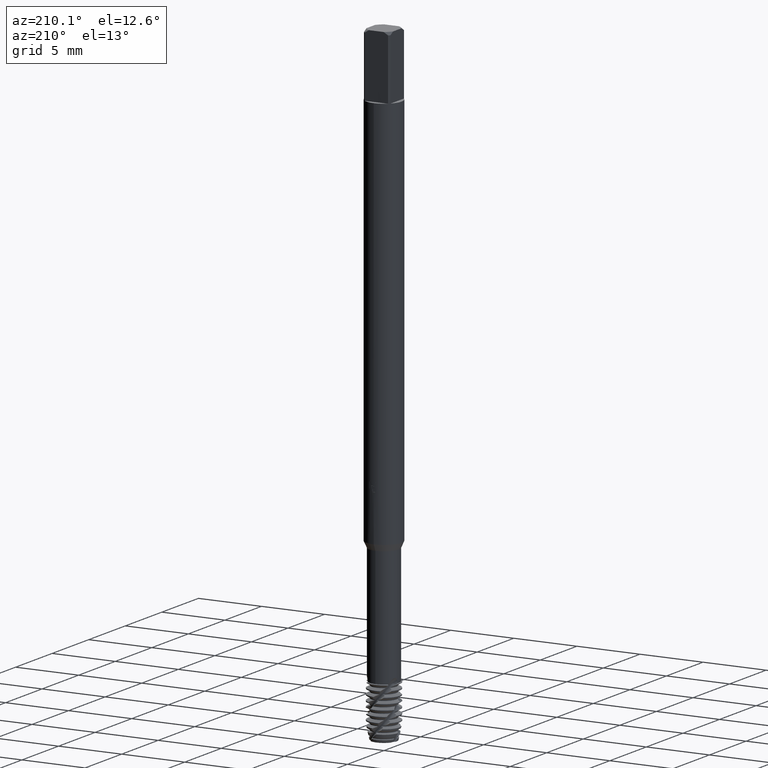
[diagram: clean part render]
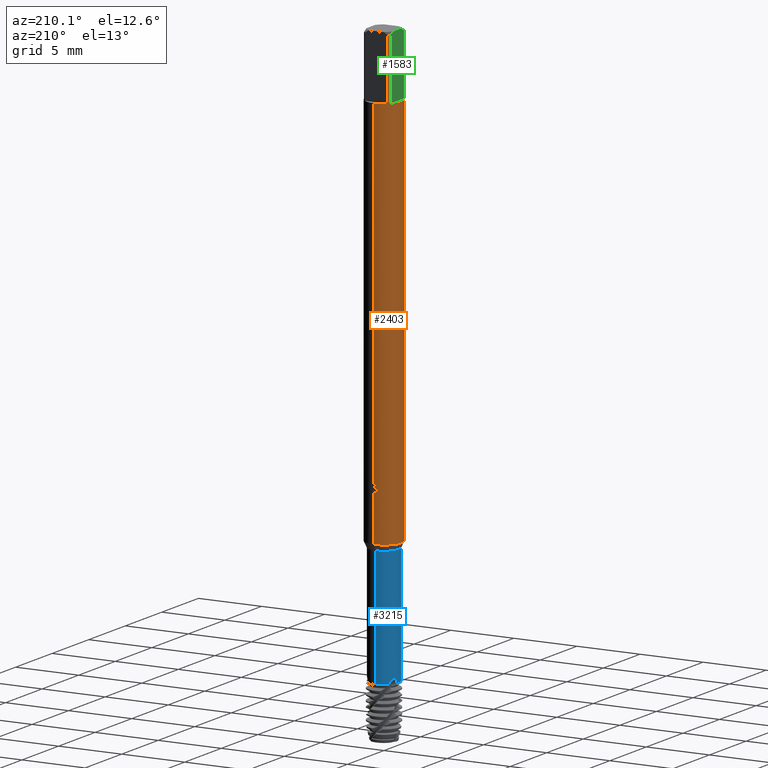
[diagram: same view with three faces highlighted in distinct colors, each labeled with its STEP entity id]
A machine part, auxiliary view with three faces highlighted in distinct colors.
Their STEP definitions:

[orange] entity #2403 — the highlighted cylindrical surface (edge-blend (fillet) strip) has radius 1.4 mm, axis along (-0, -0, 1).
#1479=VERTEX_POINT('',#4333);
#1523=VERTEX_POINT('',#4383);
#1567=VERTEX_POINT('',#4432);
#1675=EDGE_CURVE('',#3099,#2881,#4547,.T.);
#1753=EDGE_CURVE('',#3991,#2265,#4631,.T.);
#1863=VERTEX_POINT('',#4753);
#1867=EDGE_CURVE('',#2553,#2039,#4757,.T.);
#1931=EDGE_CURVE('',#1863,#3799,#4825,.T.);
#1987=EDGE_CURVE('',#3843,#2821,#4887,.T.);
#1993=EDGE_CURVE('',#2821,#2335,#4893,.T.);
#2039=VERTEX_POINT('',#4941);
#2095=VERTEX_POINT('',#5003);
#2149=VERTEX_POINT('',#5063);
#2255=EDGE_CURVE('',#2335,#1523,#5179,.T.);
#2265=VERTEX_POINT('',#5189);
#2335=VERTEX_POINT('',#5267);
#2339=EDGE_CURVE('',#3799,#2553,#5271,.T.);
#2345=VERTEX_POINT('',#5278);
#2403=ADVANCED_FACE('',(#5342),#5343,.T.);
#2405=VERTEX_POINT('',#5345);
#2493=EDGE_CURVE('',#2345,#2405,#5443,.T.);
#2553=VERTEX_POINT('',#5508);
#2585=EDGE_CURVE('',#1863,#1479,#5541,.T.);
#2607=EDGE_CURVE('',#2095,#3673,#5565,.T.);
#2821=VERTEX_POINT('',#5791);
#2881=VERTEX_POINT('',#5860);
#2947=EDGE_CURVE('',#2405,#3413,#5930,.T.);
#3015=EDGE_CURVE('',#2265,#1479,#6000,.T.);
#3099=VERTEX_POINT('',#6093);
#3191=EDGE_CURVE('',#2039,#2345,#6194,.T.);
#3341=EDGE_CURVE('',#3673,#2149,#6362,.T.);
#3413=VERTEX_POINT('',#6438);
#3583=EDGE_CURVE('',#1523,#1567,#6620,.T.);
#3673=VERTEX_POINT('',#6716);
#3799=VERTEX_POINT('',#6850);
#3825=EDGE_CURVE('',#1567,#3099,#6877,.T.);
#3843=VERTEX_POINT('',#6897);
#3909=EDGE_CURVE('',#2881,#3991,#6970,.T.);
#3991=VERTEX_POINT('',#7059);
#4175=EDGE_CURVE('',#3413,#2095,#7267,.T.);
#4181=EDGE_CURVE('',#2149,#3843,#7273,.T.);
#4333=CARTESIAN_POINT('',(0.0,1.4,-36.0));
#4383=CARTESIAN_POINT('',(-0.157453517263844,1.39111767651096,-31.5887942156352));
#4432=CARTESIAN_POINT('',(-0.289820553094464,1.36967297082333,-31.5887942156352));
#4547=LINE('',#8509,#8510);
#4631=B_SPLINE_CURVE_WITH_KNOTS('',3,(#8902,#8903,#8904,#8905,#8906,#8907,#8908,#8909,#8910,#8911),.UNSPECIFIED.,.F.,.F.,(4,2,2,2,4),(1.55844472953586,1.73165366963831,1.90490204009231,2.0781504105463,2.25114125913259),.UNSPECIFIED.);
#4753=CARTESIAN_POINT('',(1.71444889535133E-016,-1.4,-36.0));
#4757=LINE('',#9179,#9180);
#4825=LINE('',#9330,#9331);
#4887=LINE('',#9628,#9629);
#4893=B_SPLINE_CURVE_WITH_KNOTS('',3,(#9637,#9638,#9639,#9640,#9641,#9642,#9643,#9644,#9645,#9646,#9647,#9648,#9649,#9650,#9651,#9652,#9653,#9654,#9655,#9656,#9657,#9658,#9659,#9660,#9661,#9662,#9663),.UNSPECIFIED.,.F.,.F.,(4,2,3,2,2,2,2,2,2,2,2,2,4),(-0.151896109344489,-0.0759480546722444,0.0,0.0759480546722442,0.151896109344488,0.228003668182346,0.304111227020204,0.379951168701424,0.455791110382644,0.531710014355649,0.607628918328655,0.683547822301662,0.759466726274669),.UNSPECIFIED.);
#4941=CARTESIAN_POINT('',(-0.926012958872607,-1.05,-0.200000000000003));
#5003=CARTESIAN_POINT('',(-1.05,0.926012958872607,-0.200000000000003));
#5063=CARTESIAN_POINT('',(-0.926012958872607,1.05,-5.0));
#5179=B_SPLINE_CURVE_WITH_KNOTS('',3,(#10548,#10549,#10550,#10551,#10552,#10553,#10554,#10555,#10556,#10557,#10558,#10559,#10560,#10561,#10562,#10563,#10564,#10565,#10566,#10567,#10568,#10569,#10570,#10571,#10572,#10573,#10574),.UNSPECIFIED.,.F.,.F.,(4,2,3,2,2,2,2,2,2,2,2,2,4),(-0.151896109344489,-0.0759480546722444,0.0,0.0759480546722442,0.151896109344488,0.228003668182346,0.304111227020204,0.379951168701424,0.455791110382644,0.531710014355649,0.607628918328655,0.683547822301662,0.759466726274669),.UNSPECIFIED.);
#5189=CARTESIAN_POINT('',(-4.47157889729947E-015,1.40000000000001,-32.3486871008289));
#5267=CARTESIAN_POINT('',(-0.136186104427254,1.39336045047968,-31.6801194495242));
#5271=CIRCLE('',#10752,1.4);
#5278=CARTESIAN_POINT('',(-1.05,-0.926012958872607,-0.200000000000003));
#5342=FACE_OUTER_BOUND('',#11023,.T.);
#5343=CYLINDRICAL_SURFACE('',#11024,1.4);
#5345=CARTESIAN_POINT('',(-1.05,-0.926012958872607,-5.0));
#5443=LINE('',#11527,#11528);
#5508=CARTESIAN_POINT('',(-0.926012958872607,-1.05,-5.0));
#5541=CIRCLE('',#11758,1.4);
#5565=CIRCLE('',#11938,1.4);
#5791=CARTESIAN_POINT('',(9.0648518523229E-015,1.40000000000001,-31.7865152672968));
#5860=CARTESIAN_POINT('',(-1.71437466645961E-016,1.4,-31.9796095174242));
#5930=CIRCLE('',#12894,1.4);
#6000=LINE('',#13038,#13039);
#6093=CARTESIAN_POINT('',(-1.69423152329887E-016,1.40000000000001,-31.9200224434527));
#6194=CIRCLE('',#13794,1.4);
#6362=LINE('',#14543,#14544);
#6438=CARTESIAN_POINT('',(-1.05,0.926012958872607,-5.0));
#6620=CIRCLE('',#15465,1.4);
#6716=CARTESIAN_POINT('',(-0.926012958872607,1.05,-0.200000000000003));
#6850=CARTESIAN_POINT('',(1.71444889535133E-016,-1.4,-5.0));
#6877=B_SPLINE_CURVE_WITH_KNOTS('',3,(#16202,#16203,#16204,#16205,#16206,#16207,#16208,#16209,#16210,#16211,#16212,#16213,#16214,#16215),.UNSPECIFIED.,.F.,.F.,(4,2,2,2,2,2,4),(0.877332568088122,1.0025885474486,1.12784452680907,1.25310050616955,1.37810034033348,1.5031001744974,1.62879506095172),.UNSPECIFIED.);
#6897=CARTESIAN_POINT('',(-1.71444889535133E-016,1.4,-5.0));
#6970=ELLIPSE('',#16408,1.56089980486,1.4);
#7059=CARTESIAN_POINT('',(-0.374374770684041,1.34901576383498,-32.1641825094463));
#7267=LINE('',#17528,#17529);
#7273=CIRCLE('',#17554,1.4);
#8509=CARTESIAN_POINT('',(-1.71444889535133E-016,1.4,-18.1));
#8510=VECTOR('',#18367,1.0);
#8902=CARTESIAN_POINT('',(-0.429016529382615,1.33264579596999,-32.0678173500457));
#8903=CARTESIAN_POINT('',(-0.405692155785757,1.34015456887875,-32.123911251529));
#8904=CARTESIAN_POINT('',(-0.370690490742647,1.35066740394375,-32.174884162743));
#8905=CARTESIAN_POINT('',(-0.290223032522476,1.37021357743969,-32.2553819787667));
#8906=CARTESIAN_POINT('',(-0.23923067900931,1.38056999535266,-32.2904238437486));
#8907=CARTESIAN_POINT('',(-0.126980813581745,1.39537833678434,-32.3371225771094));
#8908=CARTESIAN_POINT('',(-0.065689935139525,1.39964989628983,-32.3487562533824));
#8909=CARTESIAN_POINT('',(0.0497212810642483,1.40030456931414,-32.3487562533824));
#8910=CARTESIAN_POINT('',(0.110972139307001,1.39673887442665,-32.3371535563571));
#8911=CARTESIAN_POINT('',(0.167086310021945,1.38999358451874,-32.3138300223375));
#9179=CARTESIAN_POINT('',(-0.926012958872607,-1.05,-2.6));
#9180=VECTOR('',#18586,1.0);
#9330=CARTESIAN_POINT('',(1.71444889535133E-016,-1.4,-18.1));
#9331=VECTOR('',#18646,1.0);
#9628=CARTESIAN_POINT('',(-1.71444889535133E-016,1.4,-18.1));
#9629=VECTOR('',#18702,1.0);
#9637=CARTESIAN_POINT('',(0.186234375625526,1.38755783927567,-31.4478069768094));
#9638=CARTESIAN_POINT('',(0.204045855147288,1.38516722918807,-31.4656377636506));
#9639=CARTESIAN_POINT('',(0.219509966508969,1.38272329461867,-31.4882242090074));
#9640=CARTESIAN_POINT('',(0.240044541369611,1.37930669332289,-31.5377751968526));
#9641=CARTESIAN_POINT('',(0.2451122747328,1.37837584597791,-31.5647437453002));
#9642=CARTESIAN_POINT('',(0.2451122747328,1.37837584597791,-31.5900597635243));
#9643=CARTESIAN_POINT('',(0.2451122747328,1.37837584597791,-31.6153757817484));
#9644=CARTESIAN_POINT('',(0.240044541369612,1.37930669332289,-31.642344330196));
#9645=CARTESIAN_POINT('',(0.219509966508969,1.38272329461867,-31.6918953180412));
#9646=CARTESIAN_POINT('',(0.204045855147288,1.38516722918807,-31.714481763398));
#9647=CARTESIAN_POINT('',(0.168385488889172,1.38995347006155,-31.7501807848438));
#9648=CARTESIAN_POINT('',(0.145779535192356,1.39261191870671,-31.7656794796524));
#9649=CARTESIAN_POINT('',(0.096181070294642,1.39691403840364,-31.7862627632496));
#9650=CARTESIAN_POINT('',(0.0691841415516893,1.39851962809616,-31.7913446487769));
#9651=CARTESIAN_POINT('',(0.018559799405131,1.40010521435468,-31.7913446487769));
#9652=CARTESIAN_POINT('',(-0.00839589391406644,1.4001943792419,-31.7862946899823));
#9653=CARTESIAN_POINT('',(-0.0579719081846378,1.39901895933102,-31.7657649729061));
#9654=CARTESIAN_POINT('',(-0.0805935619871287,1.39779298536454,-31.7502862407914));
#9655=CARTESIAN_POINT('',(-0.116331445893834,1.39527352684361,-31.714573107387));
#9656=CARTESIAN_POINT('',(-0.131830410449506,1.39381762035858,-31.6919457716586));
#9657=CARTESIAN_POINT('',(-0.152394035573754,1.39171939506282,-31.642343344318));
#9658=CARTESIAN_POINT('',(-0.15745749577243,1.39111722619809,-31.6153660648486));
#9659=CARTESIAN_POINT('',(-0.15745749577243,1.39111722619809,-31.5647534622));
#9660=CARTESIAN_POINT('',(-0.152394035573756,1.39171939506282,-31.5377761827306));
#9661=CARTESIAN_POINT('',(-0.131830410449509,1.39381762035858,-31.48817375539));
#9662=CARTESIAN_POINT('',(-0.116331445893835,1.39527352684361,-31.4655464196616));
#9663=CARTESIAN_POINT('',(-0.0984532064751357,1.39653391155917,-31.4476805619331));
#10548=CARTESIAN_POINT('',(0.186234375625526,1.38755783927567,-31.4478069768094));
#10549=CARTESIAN_POINT('',(0.204045855147288,1.38516722918807,-31.4656377636506));
#10550=CARTESIAN_POINT('',(0.219509966508969,1.38272329461867,-31.4882242090074));
#10551=CARTESIAN_POINT('',(0.240044541369611,1.37930669332289,-31.5377751968526));
#10552=CARTESIAN_POINT('',(0.2451122747328,1.37837584597791,-31.5647437453002));
#10553=CARTESIAN_POINT('',(0.2451122747328,1.37837584597791,-31.5900597635243));
#10554=CARTESIAN_POINT('',(0.2451122747328,1.37837584597791,-31.6153757817484));
#10555=CARTESIAN_POINT('',(0.240044541369612,1.37930669332289,-31.642344330196));
#10556=CARTESIAN_POINT('',(0.219509966508969,1.38272329461867,-31.6918953180412));
#10557=CARTESIAN_POINT('',(0.204045855147288,1.38516722918807,-31.714481763398));
#10558=CARTESIAN_POINT('',(0.168385488889172,1.38995347006155,-31.7501807848438));
#10559=CARTESIAN_POINT('',(0.145779535192356,1.39261191870671,-31.7656794796524));
#10560=CARTESIAN_POINT('',(0.096181070294642,1.39691403840364,-31.7862627632496));
#10561=CARTESIAN_POINT('',(0.0691841415516893,1.39851962809616,-31.7913446487769));
#10562=CARTESIAN_POINT('',(0.018559799405131,1.40010521435468,-31.7913446487769));
#10563=CARTESIAN_POINT('',(-0.00839589391406644,1.4001943792419,-31.7862946899823));
#10564=CARTESIAN_POINT('',(-0.0579719081846378,1.39901895933102,-31.7657649729061));
#10565=CARTESIAN_POINT('',(-0.0805935619871287,1.39779298536454,-31.7502862407914));
#10566=CARTESIAN_POINT('',(-0.116331445893834,1.39527352684361,-31.714573107387));
#10567=CARTESIAN_POINT('',(-0.131830410449506,1.39381762035858,-31.6919457716586));
#10568=CARTESIAN_POINT('',(-0.152394035573754,1.39171939506282,-31.642343344318));
#10569=CARTESIAN_POINT('',(-0.15745749577243,1.39111722619809,-31.6153660648486));
#10570=CARTESIAN_POINT('',(-0.15745749577243,1.39111722619809,-31.5647534622));
#10571=CARTESIAN_POINT('',(-0.152394035573756,1.39171939506282,-31.5377761827306));
#10572=CARTESIAN_POINT('',(-0.131830410449509,1.39381762035858,-31.48817375539));
#10573=CARTESIAN_POINT('',(-0.116331445893835,1.39527352684361,-31.4655464196616));
#10574=CARTESIAN_POINT('',(-0.0984532064751357,1.39653391155917,-31.4476805619331));
#10752=AXIS2_PLACEMENT_3D('',#19125,#19126,#19127);
#11023=EDGE_LOOP('',(#19203,#19204,#19205,#19206,#19207,#19208,#19209,#19210,#19211,#19212,#19213,#19214,#19215,#19216,#19217,#19218,#19219,#19220,#19221,#19222));
#11024=AXIS2_PLACEMENT_3D('',#19223,#19224,#19225);
#11527=CARTESIAN_POINT('',(-1.05,-0.926012958872607,-2.6));
#11528=VECTOR('',#19403,1.0);
#11758=AXIS2_PLACEMENT_3D('',#19474,#19475,#19476);
#11938=AXIS2_PLACEMENT_3D('',#19497,#19498,#19499);
#12894=AXIS2_PLACEMENT_3D('',#19814,#19815,#19816);
#13038=CARTESIAN_POINT('',(-1.71444889535133E-016,1.4,-18.1));
#13039=VECTOR('',#19853,1.0);
#13794=AXIS2_PLACEMENT_3D('',#20051,#20052,#20053);
#14543=CARTESIAN_POINT('',(-0.926012958872607,1.05,-2.6));
#14544=VECTOR('',#20248,1.0);
#15465=AXIS2_PLACEMENT_3D('',#20473,#20474,#20475);
#16202=CARTESIAN_POINT('',(-0.264513944242675,1.37478448249214,-31.4643537113286));
#16203=CARTESIAN_POINT('',(-0.281457069492113,1.37152455966724,-31.5051661228205));
#16204=CARTESIAN_POINT('',(-0.289830525012523,1.36967086074391,-31.549612527885));
#16205=CARTESIAN_POINT('',(-0.289830525012523,1.36967086074391,-31.6331165141253));
#16206=CARTESIAN_POINT('',(-0.281457069492113,1.37152455966724,-31.6775629191898));
#16207=CARTESIAN_POINT('',(-0.247570818993244,1.37804440531705,-31.7591877421737));
#16208=CARTESIAN_POINT('',(-0.222064402294621,1.38259480849808,-31.7963780115321));
#16209=CARTESIAN_POINT('',(-0.163325944898116,1.39075592373449,-31.8550453226931));
#16210=CARTESIAN_POINT('',(-0.126156946775664,1.39490256656694,-31.8804935002752));
#16211=CARTESIAN_POINT('',(-0.0446084703576172,1.39988529162754,-31.9142856189831));
#16212=CARTESIAN_POINT('',(-0.000220194096732775,1.40061988348699,-31.9226232164242));
#16213=CARTESIAN_POINT('',(0.0833081175461695,1.39814706834276,-31.9226232164242));
#16214=CARTESIAN_POINT('',(0.127803858795131,1.39476004737609,-31.9142024232933));
#16215=CARTESIAN_POINT('',(0.168607196542067,1.38980991983588,-31.897236746946));
#16408=AXIS2_PLACEMENT_3D('',#20789,#20790,#20791);
#17528=CARTESIAN_POINT('',(-1.05,0.926012958872607,-2.6));
#17529=VECTOR('',#21107,1.0);
#17554=AXIS2_PLACEMENT_3D('',#21108,#21109,#21110);
#18367=DIRECTION('',(0.0,0.0,-1.0));
#18586=DIRECTION('',(-0.0,-0.0,1.0));
#18646=DIRECTION('',(-0.0,-0.0,1.0));
#18702=DIRECTION('',(0.0,0.0,-1.0));
#19125=CARTESIAN_POINT('',(0.0,0.0,-5.0));
#19126=DIRECTION('',(0.0,0.0,-1.0));
#19127=DIRECTION('',(0.0,1.0,0.0));
#19203=ORIENTED_EDGE('',*,*,#1987,.T.);
#19204=ORIENTED_EDGE('',*,*,#1993,.T.);
#19205=ORIENTED_EDGE('',*,*,#2255,.T.);
#19206=ORIENTED_EDGE('',*,*,#3583,.T.);
#19207=ORIENTED_EDGE('',*,*,#3825,.T.);
#19208=ORIENTED_EDGE('',*,*,#1675,.T.);
#19209=ORIENTED_EDGE('',*,*,#3909,.T.);
#19210=ORIENTED_EDGE('',*,*,#1753,.T.);
#19211=ORIENTED_EDGE('',*,*,#3015,.T.);
#19212=ORIENTED_EDGE('',*,*,#2585,.F.);
#19213=ORIENTED_EDGE('',*,*,#1931,.T.);
#19214=ORIENTED_EDGE('',*,*,#2339,.T.);
#19215=ORIENTED_EDGE('',*,*,#1867,.T.);
#19216=ORIENTED_EDGE('',*,*,#3191,.T.);
#19217=ORIENTED_EDGE('',*,*,#2493,.T.);
#19218=ORIENTED_EDGE('',*,*,#2947,.T.);
#19219=ORIENTED_EDGE('',*,*,#4175,.T.);
#19220=ORIENTED_EDGE('',*,*,#2607,.T.);
#19221=ORIENTED_EDGE('',*,*,#3341,.T.);
#19222=ORIENTED_EDGE('',*,*,#4181,.T.);
#19223=CARTESIAN_POINT('',(0.0,0.0,-18.1));
#19224=DIRECTION('',(-0.0,-0.0,1.0));
#19225=DIRECTION('',(0.0,1.0,0.0));
#19403=DIRECTION('',(0.0,0.0,-1.0));
#19474=CARTESIAN_POINT('',(0.0,0.0,-36.0));
#19475=DIRECTION('',(0.0,0.0,-1.0));
#19476=DIRECTION('',(0.0,1.0,0.0));
#19497=CARTESIAN_POINT('',(0.0,0.0,-0.200000000000003));
#19498=DIRECTION('',(0.0,0.0,-1.0));
#19499=DIRECTION('',(0.0,1.0,0.0));
#19814=CARTESIAN_POINT('',(0.0,0.0,-5.0));
#19815=DIRECTION('',(0.0,0.0,-1.0));
#19816=DIRECTION('',(0.0,1.0,0.0));
#19853=DIRECTION('',(0.0,0.0,-1.0));
#20051=CARTESIAN_POINT('',(0.0,0.0,-0.200000000000003));
#20052=DIRECTION('',(0.0,0.0,-1.0));
#20053=DIRECTION('',(0.0,1.0,0.0));
#20248=DIRECTION('',(0.0,0.0,-1.0));
#20473=CARTESIAN_POINT('',(0.0,0.0,-31.5887942156352));
#20474=DIRECTION('',(0.0,-0.0,1.0));
#20475=DIRECTION('',(0.0,1.0,0.0));
#20789=CARTESIAN_POINT('',(0.0,0.0,-31.9796095174242));
#20790=DIRECTION('',(-0.442195774284071,0.0,0.896918556617774));
#20791=DIRECTION('',(0.896918556617774,-0.0,0.442195774284071));
#21107=DIRECTION('',(-0.0,-0.0,1.0));
#21108=CARTESIAN_POINT('',(0.0,0.0,-5.0));
#21109=DIRECTION('',(0.0,0.0,-1.0));
#21110=DIRECTION('',(0.0,1.0,0.0));

[blue] entity #3215 — the highlighted cylindrical surface (edge-blend (fillet) strip) has radius 1.175 mm, axis along (-0, -0, 1).
#1489=EDGE_CURVE('',#3597,#2507,#4344,.T.);
#1659=EDGE_CURVE('',#2507,#2755,#4531,.T.);
#1661=VERTEX_POINT('',#4533);
#1783=EDGE_CURVE('',#2327,#2001,#4663,.T.);
#1795=VERTEX_POINT('',#4678);
#2001=VERTEX_POINT('',#4901);
#2213=VERTEX_POINT('',#5129);
#2327=VERTEX_POINT('',#5258);
#2491=VERTEX_POINT('',#5441);
#2507=VERTEX_POINT('',#5457);
#2511=VERTEX_POINT('',#5461);
#2567=EDGE_CURVE('',#1795,#2001,#5522,.T.);
#2755=VERTEX_POINT('',#5720);
#2903=EDGE_CURVE('',#2755,#2327,#5884,.T.);
#3215=ADVANCED_FACE('',(#6220),#6221,.T.);
#3279=EDGE_CURVE('',#1795,#2491,#6293,.T.);
#3397=EDGE_CURVE('',#1661,#4099,#6422,.T.);
#3523=EDGE_CURVE('',#2213,#3597,#6558,.T.);
#3533=EDGE_CURVE('',#2491,#2511,#6568,.T.);
#3597=VERTEX_POINT('',#6636);
#3997=EDGE_CURVE('',#1661,#2213,#7065,.T.);
#4017=EDGE_CURVE('',#2511,#4099,#7086,.T.);
#4099=VERTEX_POINT('',#7179);
#4344=B_SPLINE_CURVE_WITH_KNOTS('',3,(#7471,#7472,#7473,#7474,#7475,#7476,#7477,#7478,#7479,#7480,#7481,#7482,#7483,#7484,#7485,#7486,#7487,#7488,#7489,#7490,#7491,#7492),.UNSPECIFIED.,.F.,.F.,(4,2,2,2,2,2,2,2,2,2,4),(0.0,0.0841817871272147,0.156980846909316,0.240447389108906,0.348248711493823,0.444682957240608,0.535374247849396,0.636901902684092,0.762667788423749,0.891661716106928,1.02678632898102),.UNSPECIFIED.);
#4531=LINE('',#8465,#8466);
#4533=CARTESIAN_POINT('',(-0.308988805447096,-1.13364497004502,-45.8566987298108));
#4663=LINE('',#8987,#8988);
#4678=CARTESIAN_POINT('',(-0.827270940207888,0.834414640024704,-45.8566987298108));
#4901=CARTESIAN_POINT('',(-1.43891246574129E-016,1.175,-45.8566987298108));
#5129=CARTESIAN_POINT('',(-0.234992504541238,-1.15126170908679,-45.7623874233645));
#5258=CARTESIAN_POINT('',(0.0,1.175,-36.49421268));
#5441=CARTESIAN_POINT('',(-0.879525634202839,0.779140333175029,-45.7623874233645));
#5457=CARTESIAN_POINT('',(-1.20216587817484E-009,-1.175,-45.539205110044));
#5461=CARTESIAN_POINT('',(-0.984932251321752,0.640728850845866,-45.5898162549325));
#5522=CIRCLE('',#11715,1.175);
#5720=CARTESIAN_POINT('',(1.43891246574129E-016,-1.175,-36.49421268));
#5884=CIRCLE('',#12693,1.175);
#6220=FACE_OUTER_BOUND('',#13965,.T.);
#6221=CYLINDRICAL_SURFACE('',#13966,1.175);
#6293=B_SPLINE_CURVE_WITH_KNOTS('',3,(#14187,#14188,#14189,#14190),.UNSPECIFIED.,.F.,.F.,(4,4),(0.0,0.120829180290312),.UNSPECIFIED.);
#6422=CIRCLE('',#14712,1.175);
#6558=B_SPLINE_CURVE_WITH_KNOTS('',3,(#15106,#15107,#15108,#15109,#15110,#15111,#15112,#15113,#15114,#15115,#15116,#15117,#15118,#15119),.UNSPECIFIED.,.F.,.F.,(4,2,2,2,2,2,4),(0.0,0.0730624173400216,0.108764522274082,0.135861946287906,0.164424806483613,0.208150389191107,0.245366890160212),.UNSPECIFIED.);
#6568=B_SPLINE_CURVE_WITH_KNOTS('',3,(#15154,#15155,#15156,#15157,#15158,#15159,#15160,#15161,#15162,#15163,#15164,#15165,#15166,#15167),.UNSPECIFIED.,.F.,.F.,(4,2,2,2,2,2,4),(0.0,0.0730624173402786,0.108764522273447,0.13586194628737,0.164424806481519,0.208150389186009,0.245366890153584),.UNSPECIFIED.);
#6636=CARTESIAN_POINT('',(-0.0624213361092404,-1.17334077607417,-45.5898162549325));
#7065=B_SPLINE_CURVE_WITH_KNOTS('',3,(#16788,#16789,#16790,#16791),.UNSPECIFIED.,.F.,.F.,(4,4),(0.0,0.120829180290311),.UNSPECIFIED.);
#7086=B_SPLINE_CURVE_WITH_KNOTS('',3,(#16846,#16847,#16848,#16849,#16850,#16851,#16852,#16853,#16854,#16855,#16856,#16857,#16858,#16859,#16860,#16861,#16862,#16863,#16864,#16865,#16866,#16867),.UNSPECIFIED.,.F.,.F.,(4,2,2,2,2,2,2,2,2,2,4),(0.0,0.0841817871270695,0.156980846909015,0.240447389108626,0.348248711483474,0.444682957210686,0.535374247801119,0.636901902615344,0.7626677883297,0.891661715986924,1.02678632883377),.UNSPECIFIED.);
#7179=CARTESIAN_POINT('',(-1.14849962479763,0.248140306761531,-45.8566987298108));
#7471=CARTESIAN_POINT('',(-0.0624213361092398,-1.17334077607417,-45.5898162549325));
#7472=CARTESIAN_POINT('',(-0.0412882625215394,-1.1744650485075,-45.5713900170153));
#7473=CARTESIAN_POINT('',(-0.019171134966112,-1.17506204999753,-45.5532689430655));
#7474=CARTESIAN_POINT('',(0.0230796701197636,-1.17493669663887,-45.5222414992643));
#7475=CARTESIAN_POINT('',(0.043556298781691,-1.17438333532977,-45.5086073246523));
#7476=CARTESIAN_POINT('',(0.0889396182934026,-1.17188060109015,-45.4829202607176));
#7477=CARTESIAN_POINT('',(0.114520339778763,-1.16970964446998,-45.4711255898574));
#7478=CARTESIAN_POINT('',(0.175163413476366,-1.16238034571493,-45.4525400276971));
#7479=CARTESIAN_POINT('',(0.205216788232979,-1.15724589331639,-45.4499229865993));
#7480=CARTESIAN_POINT('',(0.254606036011483,-1.14733016986861,-45.4543946715206));
#7481=CARTESIAN_POINT('',(0.276884980590132,-1.14210814729991,-45.4606983043219));
#7482=CARTESIAN_POINT('',(0.316765437939759,-1.1316730165745,-45.4816701549037));
#7483=CARTESIAN_POINT('',(0.333753880191169,-1.12670315841001,-45.4954006828259));
#7484=CARTESIAN_POINT('',(0.364230488834712,-1.11724894816653,-45.5306140335427));
#7485=CARTESIAN_POINT('',(0.376587952902308,-1.11305644562499,-45.552260466532));
#7486=CARTESIAN_POINT('',(0.396442449943476,-1.10616166434668,-45.604502264913));
#7487=CARTESIAN_POINT('',(0.40192139869954,-1.10412196031456,-45.635501079484));
#7488=CARTESIAN_POINT('',(0.403929803159219,-1.10338881905806,-45.6988351621723));
#7489=CARTESIAN_POINT('',(0.400230337721583,-1.10476276209008,-45.7309457337352));
#7490=CARTESIAN_POINT('',(0.385272914665653,-1.11007013826169,-45.7948963594831));
#7491=CARTESIAN_POINT('',(0.37371292831058,-1.11408756413325,-45.8264695246299));
#7492=CARTESIAN_POINT('',(0.359354003040469,-1.11870000469241,-45.8566987298108));
#8465=CARTESIAN_POINT('',(1.43891246574129E-016,-1.175,-41.1754557049054));
#8466=VECTOR('',#18360,1.0);
#8987=CARTESIAN_POINT('',(-1.43891246574129E-016,1.175,-41.1754557049054));
#8988=VECTOR('',#18467,1.0);
#11715=AXIS2_PLACEMENT_3D('',#19458,#19459,#19460);
#12693=AXIS2_PLACEMENT_3D('',#19788,#19789,#19790);
#13965=EDGE_LOOP('',(#20073,#20074,#20075,#20076,#20077,#20078,#20079,#20080,#20081,#20082,#20083));
#13966=AXIS2_PLACEMENT_3D('',#20084,#20085,#20086);
#14187=CARTESIAN_POINT('',(-0.827270940207888,0.834414640024704,-45.8566987298108));
#14188=CARTESIAN_POINT('',(-0.84383069298654,0.817996660768731,-45.8238595396137));
#14189=CARTESIAN_POINT('',(-0.86175811463883,0.799197039582547,-45.7924279401098));
#14190=CARTESIAN_POINT('',(-0.879525634202838,0.779140333175032,-45.7623874233645));
#14712=AXIS2_PLACEMENT_3D('',#20303,#20304,#20305);
#15106=CARTESIAN_POINT('',(-0.234992504541238,-1.15126170908679,-45.7623874233645));
#15107=CARTESIAN_POINT('',(-0.219108926813494,-1.15450382309254,-45.7442125850628));
#15108=CARTESIAN_POINT('',(-0.202902200308218,-1.15747104171919,-45.7263291878754));
#15109=CARTESIAN_POINT('',(-0.178153399280879,-1.16144481761581,-45.7001187223371));
#15110=CARTESIAN_POINT('',(-0.169945234636938,-1.16267534397693,-45.6915972227259));
#15111=CARTESIAN_POINT('',(-0.15533323234795,-1.16470472912727,-45.6767356492357));
#15112=CARTESIAN_POINT('',(-0.148978831458259,-1.1655350761789,-45.6703724263764));
#15113=CARTESIAN_POINT('',(-0.13581154833317,-1.16714461926911,-45.6573919807133));
#15114=CARTESIAN_POINT('',(-0.129000598487642,-1.16791762787664,-45.6507876627664));
#15115=CARTESIAN_POINT('',(-0.111608607099298,-1.16973518287284,-45.6341981767681));
#15116=CARTESIAN_POINT('',(-0.100970507479721,-1.17070354297228,-45.6243033239712));
#15117=CARTESIAN_POINT('',(-0.0810210687654217,-1.17223940449562,-45.6061934766523));
#15118=CARTESIAN_POINT('',(-0.0717658942725029,-1.17284364871118,-45.5979639127369));
#15119=CARTESIAN_POINT('',(-0.0624213361092431,-1.17334077607417,-45.5898162549325));
#15154=CARTESIAN_POINT('',(-0.879525634202839,0.779140333175028,-45.7623874233645));
#15155=CARTESIAN_POINT('',(-0.890275176157697,0.767005808362651,-45.7442125850627));
#15156=CARTESIAN_POINT('',(-0.900948226119569,0.754453980810243,-45.7263291878754));
#15157=CARTESIAN_POINT('',(-0.916764017508483,0.735007778355892,-45.7001187223374));
#15158=CARTESIAN_POINT('',(-0.921933766919287,0.728514562436255,-45.691597222726));
#15159=CARTESIAN_POINT('',(-0.930997267158288,0.716874889828692,-45.6767356492354));
#15160=CARTESIAN_POINT('',(-0.934893569243717,0.711786990758313,-45.6703724263763));
#15161=CARTESIAN_POINT('',(-0.942871116010453,0.701188560618808,-45.6573919807138));
#15162=CARTESIAN_POINT('',(-0.946946036024848,0.69567660933223,-45.6507876627666));
#15163=CARTESIAN_POINT('',(-0.957216080518827,0.681523480465191,-45.6341981767678));
#15164=CARTESIAN_POINT('',(-0.963373754774663,0.672794795996471,-45.6243033239711));
#15165=CARTESIAN_POINT('',(-0.974678569227724,0.656286006040313,-45.6061934766522));
#15166=CARTESIAN_POINT('',(-0.979829447315018,0.648572911920641,-45.5979639127366));
#15167=CARTESIAN_POINT('',(-0.984932251321749,0.640728850845869,-45.5898162549325));
#16788=CARTESIAN_POINT('',(-0.308988805447096,-1.13364497004502,-45.8566987298108));
#16789=CARTESIAN_POINT('',(-0.286490541943292,-1.13977714700374,-45.8238595396137));
#16790=CARTESIAN_POINT('',(-0.26124588158838,-1.14590293898588,-45.7924279401098));
#16791=CARTESIAN_POINT('',(-0.234992504541234,-1.15126170908679,-45.7623874233645));
#16846=CARTESIAN_POINT('',(-0.984932251321752,0.640728850845867,-45.5898162549325));
#16847=CARTESIAN_POINT('',(-0.996472436603619,0.622989208475567,-45.5713900170154));
#16848=CARTESIAN_POINT('',(-1.00804801883781,0.60413371489882,-45.5532689430655));
#16849=CARTESIAN_POINT('',(-1.02906486218771,0.56748076768476,-45.5222414992643));
#16850=CARTESIAN_POINT('',(-1.03882395156752,0.549470806425123,-45.5086073246523));
#16851=CARTESIAN_POINT('',(-1.05934817989297,0.508916331700063,-45.4829202607176));
#16852=CARTESIAN_POINT('',(-1.07025843705205,0.485677298736554,-45.4711255898574));
#16853=CARTESIAN_POINT('',(-1.09423261498576,0.429494206976346,-45.4525400276981));
#16854=CARTESIAN_POINT('',(-1.10481273615276,0.400899994768179,-45.449922986599));
#16855=CARTESIAN_POINT('',(-1.12092009164027,0.353169789791501,-45.4543946715206));
#16856=CARTESIAN_POINT('',(-1.12753715972597,0.331264646532546,-45.4606983043219));
#16857=CARTESIAN_POINT('',(-1.13844030010076,0.291509591990522,-45.4816701549037));
#16858=CARTESIAN_POINT('',(-1.14263049780282,0.27431224034783,-45.4954006828259));
#16859=CARTESIAN_POINT('',(-1.14968121588101,0.243191617919585,-45.5306140335427));
#16860=CARTESIAN_POINT('',(-1.15222913420841,0.230393488839925,-45.552260466532));
#16861=CARTESIAN_POINT('',(-1.15618532698844,0.20975159938376,-45.604502264913));
#16862=CARTESIAN_POINT('',(-1.15715836585845,0.203986838558911,-45.635501079484));
#16863=CARTESIAN_POINT('',(-1.1575276491356,0.201880938647503,-45.6988351621723));
#16864=CARTESIAN_POINT('',(-1.15686778598587,0.205771741212927,-45.7309457337352));
#16865=CARTESIAN_POINT('',(-1.15398539704995,0.221378937640311,-45.7948963594831));
#16866=CARTESIAN_POINT('',(-1.15168459673501,0.23339889242697,-45.8264695246299));
#16867=CARTESIAN_POINT('',(-1.14849962479763,0.248140306761526,-45.8566987298108));
#18360=DIRECTION('',(-0.0,-0.0,1.0));
#18467=DIRECTION('',(0.0,0.0,-1.0));
#19458=CARTESIAN_POINT('',(0.0,0.0,-45.8566987298108));
#19459=DIRECTION('',(0.0,0.0,-1.0));
#19460=DIRECTION('',(0.0,1.0,0.0));
#19788=CARTESIAN_POINT('',(0.0,0.0,-36.49421268));
#19789=DIRECTION('',(0.0,0.0,-1.0));
#19790=DIRECTION('',(0.0,1.0,0.0));
#20073=ORIENTED_EDGE('',*,*,#1783,.T.);
#20074=ORIENTED_EDGE('',*,*,#2567,.F.);
#20075=ORIENTED_EDGE('',*,*,#3279,.T.);
#20076=ORIENTED_EDGE('',*,*,#3533,.T.);
#20077=ORIENTED_EDGE('',*,*,#4017,.T.);
#20078=ORIENTED_EDGE('',*,*,#3397,.F.);
#20079=ORIENTED_EDGE('',*,*,#3997,.T.);
#20080=ORIENTED_EDGE('',*,*,#3523,.T.);
#20081=ORIENTED_EDGE('',*,*,#1489,.T.);
#20082=ORIENTED_EDGE('',*,*,#1659,.T.);
#20083=ORIENTED_EDGE('',*,*,#2903,.T.);
#20084=CARTESIAN_POINT('',(0.0,0.0,-41.1754557049054));
#20085=DIRECTION('',(-0.0,-0.0,1.0));
#20086=DIRECTION('',(0.0,1.0,0.0));
#20303=CARTESIAN_POINT('',(0.0,0.0,-45.8566987298108));
#20304=DIRECTION('',(0.0,0.0,-1.0));
#20305=DIRECTION('',(0.0,1.0,0.0));

[green] entity #1583 — the highlighted planar face has unit normal (-1, 0, 0).
#1583=ADVANCED_FACE('',(#4448),#4449,.T.);
#1637=EDGE_CURVE('',#2095,#3663,#4506,.T.);
#1679=EDGE_CURVE('',#2405,#3413,#4551,.T.);
#2095=VERTEX_POINT('',#5003);
#2345=VERTEX_POINT('',#5278);
#2405=VERTEX_POINT('',#5345);
#2493=EDGE_CURVE('',#2345,#2405,#5443,.T.);
#2761=EDGE_CURVE('',#3921,#2345,#5728,.T.);
#3413=VERTEX_POINT('',#6438);
#3663=VERTEX_POINT('',#6705);
#3921=VERTEX_POINT('',#6983);
#4035=EDGE_CURVE('',#3663,#3921,#7105,.T.);
#4175=EDGE_CURVE('',#3413,#2095,#7267,.T.);
#4448=FACE_OUTER_BOUND('',#8228,.T.);
#4449=PLANE('',#8229);
#4506=(B_SPLINE_CURVE(2,(#8386,#8387,#8388),.UNSPECIFIED.,.F.,.F.)B_SPLINE_CURVE_WITH_KNOTS((3,3),(0.0,0.399055598432478),.UNSPECIFIED.)RATIONAL_B_SPLINE_CURVE((1.0,1.00892504363194,1.0))BOUNDED_CURVE()REPRESENTATION_ITEM('')GEOMETRIC_REPRESENTATION_ITEM()CURVE());
#4551=LINE('',#8516,#8517);
#5003=CARTESIAN_POINT('',(-1.05,0.926012958872607,-0.200000000000003));
#5278=CARTESIAN_POINT('',(-1.05,-0.926012958872607,-0.200000000000003));
#5345=CARTESIAN_POINT('',(-1.05,-0.926012958872607,-5.0));
#5443=LINE('',#11527,#11528);
#5728=(B_SPLINE_CURVE(2,(#12375,#12376,#12377),.UNSPECIFIED.,.F.,.F.)B_SPLINE_CURVE_WITH_KNOTS((3,3),(0.0,0.399055598432478),.UNSPECIFIED.)RATIONAL_B_SPLINE_CURVE((1.0,1.00892504363194,1.0))BOUNDED_CURVE()REPRESENTATION_ITEM('')GEOMETRIC_REPRESENTATION_ITEM()CURVE());
#6438=CARTESIAN_POINT('',(-1.05,0.926012958872607,-5.0));
#6705=CARTESIAN_POINT('',(-1.05,0.580947501931112,0.0));
#6983=CARTESIAN_POINT('',(-1.05,-0.580947501931112,0.0));
#7105=LINE('',#16890,#16891);
#7267=LINE('',#17528,#17529);
#8228=EDGE_LOOP('',(#18281,#18282,#18283,#18284,#18285,#18286));
#8229=AXIS2_PLACEMENT_3D('',#18287,#18288,#18289);
#8386=CARTESIAN_POINT('',(-1.05,0.926012958872606,-0.200000000000003));
#8387=CARTESIAN_POINT('',(-1.05,0.74020848205796,-0.0771018904664953));
#8388=CARTESIAN_POINT('',(-1.05,0.580947501931112,5.55111512312578E-017));
#8516=CARTESIAN_POINT('',(-1.05,0.0,-5.0));
#8517=VECTOR('',#18371,1.0);
#11527=CARTESIAN_POINT('',(-1.05,-0.926012958872607,-2.6));
#11528=VECTOR('',#19403,1.0);
#12375=CARTESIAN_POINT('',(-1.05,-0.580947501931112,5.55111512312578E-017));
#12376=CARTESIAN_POINT('',(-1.05,-0.74020848205796,-0.0771018904664953));
#12377=CARTESIAN_POINT('',(-1.05,-0.926012958872606,-0.200000000000003));
#16890=CARTESIAN_POINT('',(-1.05,0.3,0.0));
#16891=VECTOR('',#20907,1.0);
#17528=CARTESIAN_POINT('',(-1.05,0.926012958872607,-2.6));
#17529=VECTOR('',#21107,1.0);
#18281=ORIENTED_EDGE('',*,*,#4175,.F.);
#18282=ORIENTED_EDGE('',*,*,#1679,.F.);
#18283=ORIENTED_EDGE('',*,*,#2493,.F.);
#18284=ORIENTED_EDGE('',*,*,#2761,.F.);
#18285=ORIENTED_EDGE('',*,*,#4035,.F.);
#18286=ORIENTED_EDGE('',*,*,#1637,.F.);
#18287=CARTESIAN_POINT('',(-1.05,0.0,-2.0));
#18288=DIRECTION('',(-1.0,0.0,0.0));
#18289=DIRECTION('',(0.0,0.0,-1.0));
#18371=DIRECTION('',(0.0,1.0,0.0));
#19403=DIRECTION('',(0.0,0.0,-1.0));
#20907=DIRECTION('',(-0.0,-1.0,0.0));
#21107=DIRECTION('',(-0.0,-0.0,1.0));